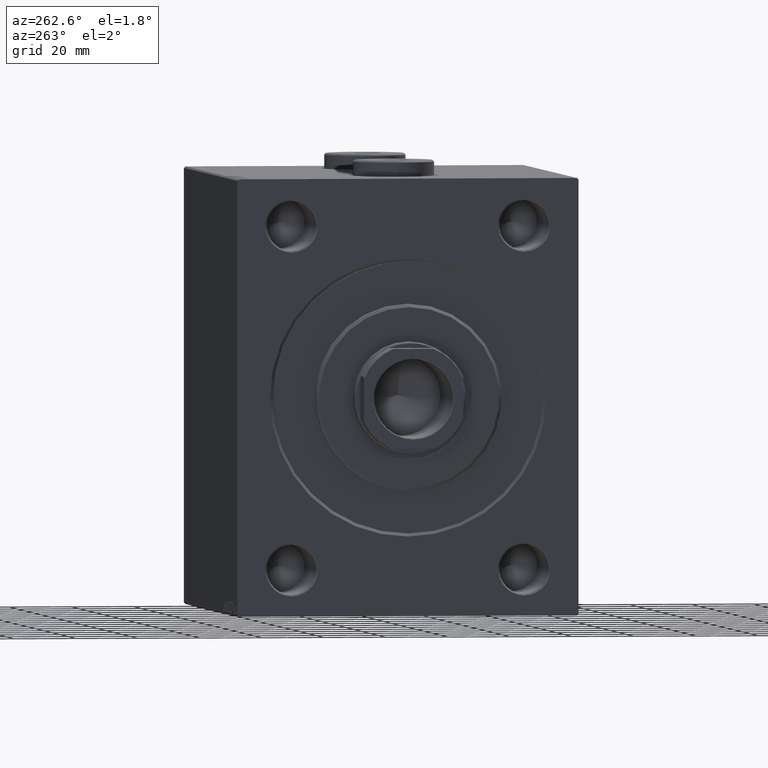
[diagram: clean part render]
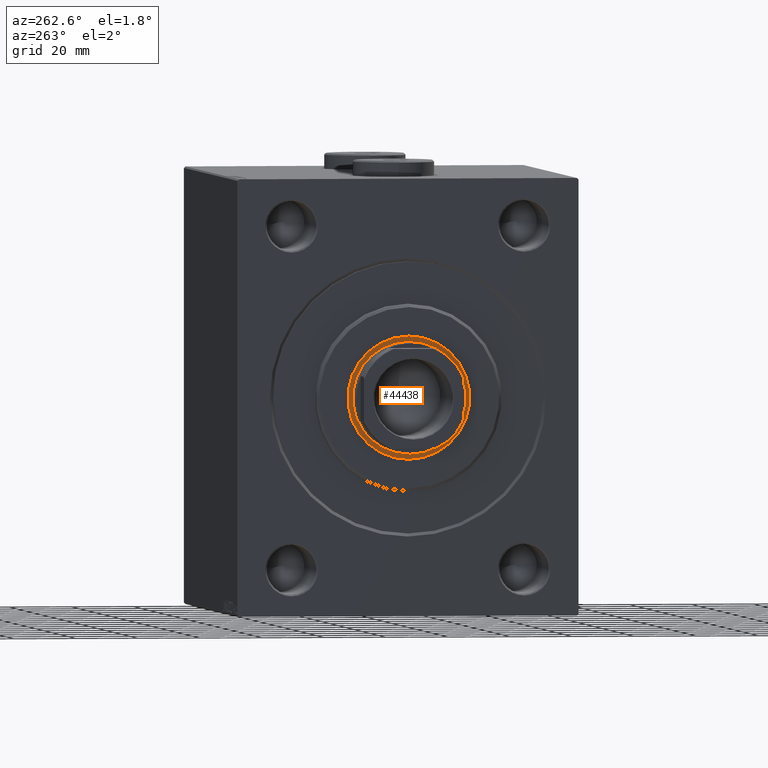
[diagram: same view with one face highlighted and labeled with its STEP entity id]
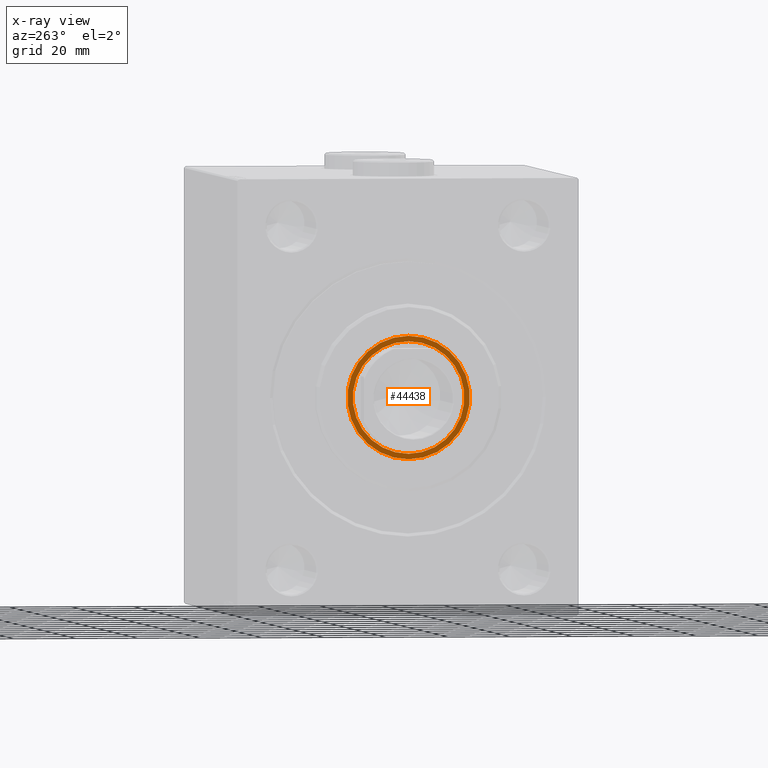
[diagram: x-ray of the same camera — body ghosted, the highlighted face saturated]
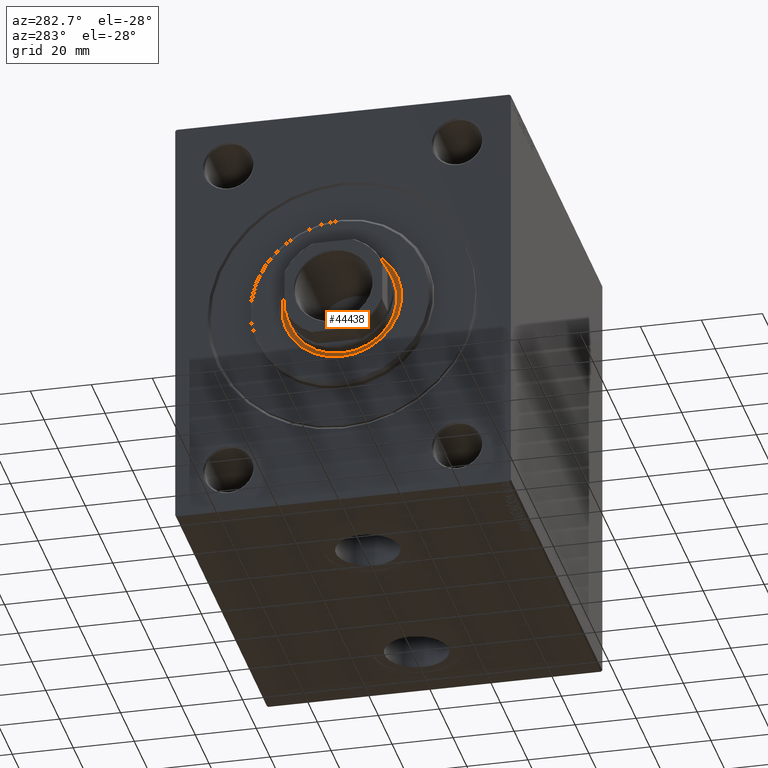
[diagram: same view with one face highlighted and labeled with its STEP entity id]
A machine part, auxiliary view. The second image highlights one B-rep face of the part: STEP entity #44438.
The next image is the same camera in x-ray: the body ghosted, the highlighted face saturated — about 0% of this face is hidden behind the body in this view.
A second angle (auxiliary view) of the same face is appended — the face is thin or edge-on in the first view.
In plain terms, the highlighted planar face has unit normal (-1, 0, 0).
Its self-contained STEP definition (entity closure, byte-faithful):
#106 = CARTESIAN_POINT ( 'NONE',  ( 1.499999999999999556, 0.000000000000000000, 0.000000000000000000 ) ) ;
#504 = DIRECTION ( 'NONE',  ( 1.000000000000000000, 0.000000000000000000, 0.000000000000000000 ) ) ;
#697 = VERTEX_POINT ( 'NONE', #25035 ) ;
#1930 = EDGE_CURVE ( 'NONE', #15004, #697, #35701, .T. ) ;
#1963 = PLANE ( 'NONE',  #14516 ) ;
#2767 = ORIENTED_EDGE ( 'NONE', *, *, #22315, .T. ) ;
#4806 = CARTESIAN_POINT ( 'NONE',  ( 1.500000000000000000, 0.000000000000000000, 0.000000000000000000 ) ) ;
#6008 = DIRECTION ( 'NONE',  ( 1.000000000000000000, 0.000000000000000000, 0.000000000000000000 ) ) ;
#6915 = ORIENTED_EDGE ( 'NONE', *, *, #13274, .F. ) ;
#8051 = DIRECTION ( 'NONE',  ( 1.000000000000000000, 0.000000000000000000, 0.000000000000000000 ) ) ;
#9136 = AXIS2_PLACEMENT_3D ( 'NONE', #37668, #6008, #16628 ) ;
#12594 = DIRECTION ( 'NONE',  ( 1.000000000000000000, 0.000000000000000000, 0.000000000000000000 ) ) ;
#13274 = EDGE_CURVE ( 'NONE', #697, #15004, #22683, .T. ) ;
#14516 = AXIS2_PLACEMENT_3D ( 'NONE', #26698, #12594, #29713 ) ;
#15004 = VERTEX_POINT ( 'NONE', #43078 ) ;
#16628 = DIRECTION ( 'NONE',  ( 0.000000000000000000, 0.000000000000000000, -1.000000000000000000 ) ) ;
#16676 = ORIENTED_EDGE ( 'NONE', *, *, #1930, .F. ) ;
#17667 = DIRECTION ( 'NONE',  ( 1.000000000000000000, 0.000000000000000000, 0.000000000000000000 ) ) ;
#18678 = CARTESIAN_POINT ( 'NONE',  ( 1.500000000000000000, 2.418677428316022331E-15, -19.75000000000000000 ) ) ;
#22012 = EDGE_LOOP ( 'NONE', ( #29945, #2767 ) ) ;
#22311 = VERTEX_POINT ( 'NONE', #18678 ) ;
#22315 = EDGE_CURVE ( 'NONE', #22311, #41568, #39836, .T. ) ;
#22683 = CIRCLE ( 'NONE', #30032, 18.00000000000000000 ) ;
#22787 = FACE_OUTER_BOUND ( 'NONE', #22012, .T. ) ;
#23985 = EDGE_LOOP ( 'NONE', ( #16676, #6915 ) ) ;
#25035 = CARTESIAN_POINT ( 'NONE',  ( 1.499999999999999556, 2.204364238465235428E-15, 18.00000000000000000 ) ) ;
#26698 = CARTESIAN_POINT ( 'NONE',  ( 1.500000000000000000, 0.000000000000000000, 0.000000000000000000 ) ) ;
#26966 = AXIS2_PLACEMENT_3D ( 'NONE', #42557, #504, #28710 ) ;
#28710 = DIRECTION ( 'NONE',  ( 0.000000000000000000, 0.000000000000000000, -1.000000000000000000 ) ) ;
#29713 = DIRECTION ( 'NONE',  ( 0.000000000000000000, 0.000000000000000000, -1.000000000000000000 ) ) ;
#29945 = ORIENTED_EDGE ( 'NONE', *, *, #39559, .T. ) ;
#30006 = DIRECTION ( 'NONE',  ( 0.000000000000000000, 0.000000000000000000, -1.000000000000000000 ) ) ;
#30032 = AXIS2_PLACEMENT_3D ( 'NONE', #106, #17667, #31102 ) ;
#30633 = CIRCLE ( 'NONE', #26966, 19.75000000000000000 ) ;
#31102 = DIRECTION ( 'NONE',  ( 0.000000000000000000, 0.000000000000000000, -1.000000000000000000 ) ) ;
#31732 = AXIS2_PLACEMENT_3D ( 'NONE', #4806, #8051, #30006 ) ;
#35701 = CIRCLE ( 'NONE', #9136, 18.00000000000000000 ) ;
#37668 = CARTESIAN_POINT ( 'NONE',  ( 1.499999999999999556, 0.000000000000000000, 0.000000000000000000 ) ) ;
#38776 = CARTESIAN_POINT ( 'NONE',  ( 1.500000000000000000, 0.000000000000000000, 19.75000000000000000 ) ) ;
#39559 = EDGE_CURVE ( 'NONE', #41568, #22311, #30633, .T. ) ;
#39836 = CIRCLE ( 'NONE', #31732, 19.75000000000000000 ) ;
#40773 = FACE_BOUND ( 'NONE', #23985, .T. ) ;
#41568 = VERTEX_POINT ( 'NONE', #38776 ) ;
#42557 = CARTESIAN_POINT ( 'NONE',  ( 1.500000000000000000, 0.000000000000000000, 0.000000000000000000 ) ) ;
#43078 = CARTESIAN_POINT ( 'NONE',  ( 1.499999999999999556, 0.000000000000000000, -18.00000000000000000 ) ) ;
#44438 = ADVANCED_FACE ( 'NONE', ( #40773, #22787 ), #1963, .T. ) ;